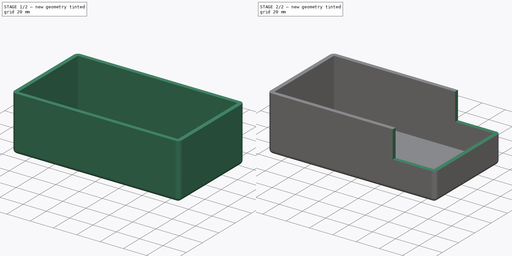
[diagram: build sequence overview — one tinted view per stage of 2, left to right]
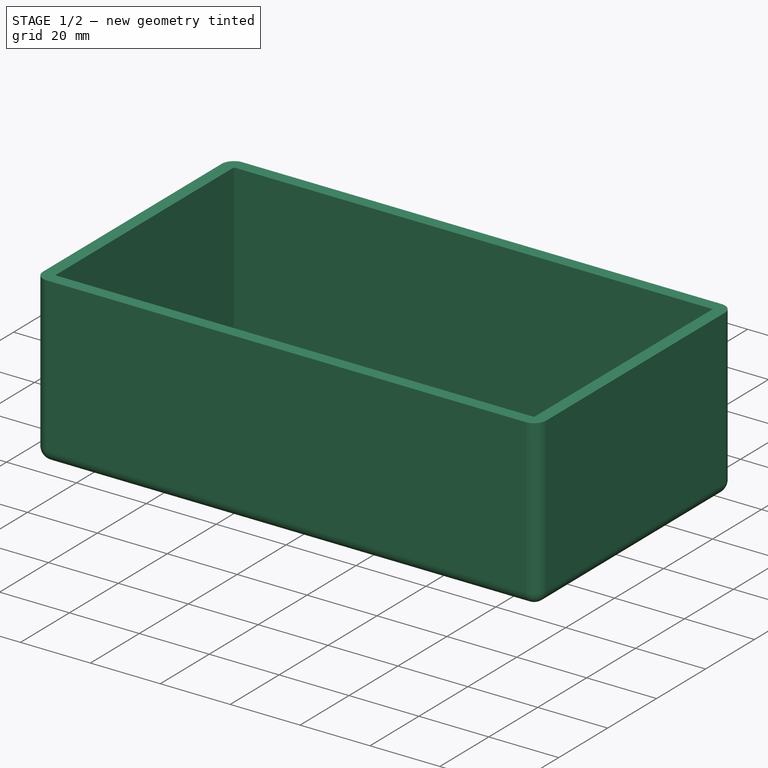
[diagram: stage 1 of 2 — iso view after this stage's code; geometry added in this stage tinted green]
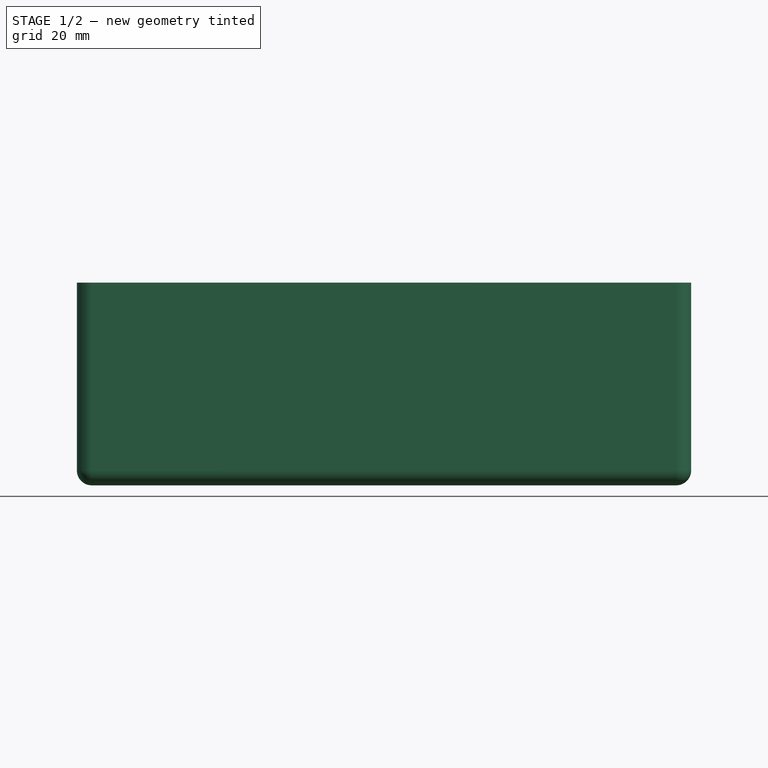
[diagram: stage 1 of 2 — front view after this stage's code; geometry added in this stage tinted green]
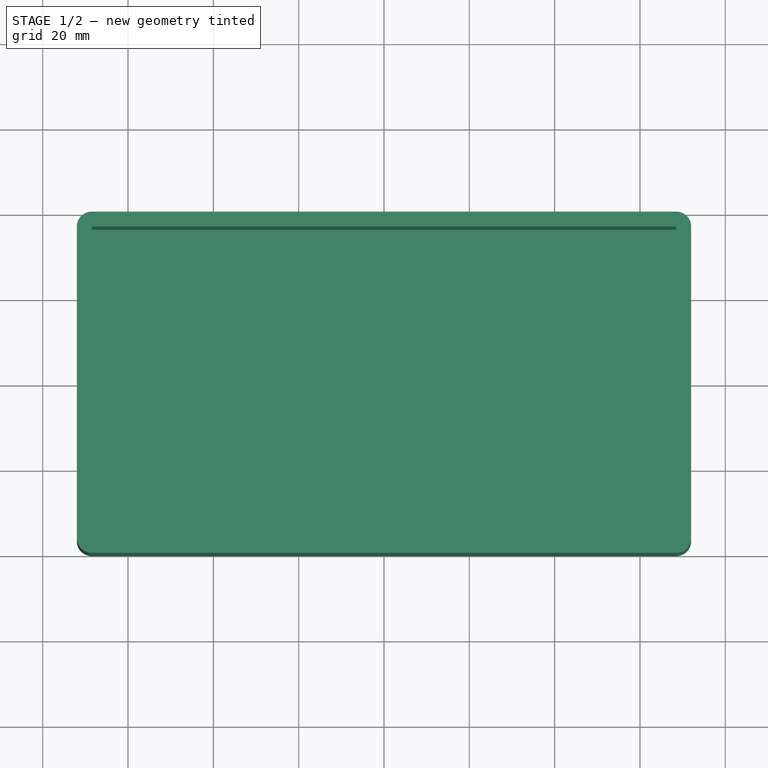
[diagram: stage 1 of 2 — top view after this stage's code; geometry added in this stage tinted green]
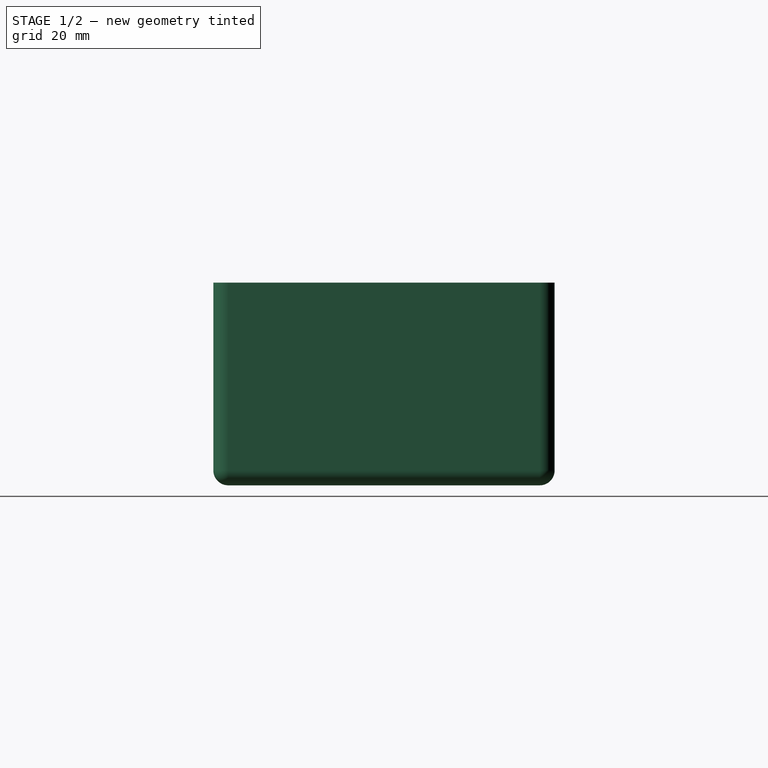
[diagram: stage 1 of 2 — right view after this stage's code; geometry added in this stage tinted green]
FCSTD DOCUMENT  (FreeCAD 0.18R4 (GitTag))
Label: CandleBurnerEnclosure
License: All rights reserved
LicenseURL: http://en.wikipedia.org/wiki/All_rights_reserved
objects: Sketcher::SketchObject×2, PartDesign::Pad×1, PartDesign::Thickness×1, PartDesign::Pocket×1, PartDesign::Body×1
note: 8 computed .brp shape members not serialized (recipe doc carries the construction recipe); baked Part::Feature solids carry a one-line shape summary decoded from their .brp

FEATURE [Sketcher::SketchObject] Sketch
  MapMode = 5
  Support = -> [XY_Plane]
  sketch-geometry (4):
    g0: LineSegment StartX=-68.5 StartY=36.5 StartZ=0 EndX=68.5 EndY=36.5 EndZ=0
    g1: LineSegment StartX=68.5 StartY=36.5 StartZ=0 EndX=68.5 EndY=-36.5 EndZ=0
    g2: LineSegment StartX=68.5 StartY=-36.5 StartZ=0 EndX=-68.5 EndY=-36.5 EndZ=0
    g3: LineSegment StartX=-68.5 StartY=-36.5 StartZ=0 EndX=-68.5 EndY=36.5 EndZ=0
  constraints (12):
    c: Coincident(g0,g1)
    c: Coincident(g1,g2)
    c: Coincident(g2,g3)
    c: Coincident(g3,g0)
    c: Horizontal(g0)
    c: Horizontal(g2)
    c: Vertical(g1)
    c: Vertical(g3)
    c: DistanceX(g0,g0) = 137
    c: DistanceX(g0,g-1) = 68.5
    c: DistanceY(g1,g1) = 73
    c: DistanceY(g-1,g0) = 36.5
FEATURE [PartDesign::Pad] Pad
  Length = 44
  Length2 = 100
  Profile = -> Sketch
  Type = 0
FEATURE [PartDesign::Thickness] Thickness
  Base = -> Pad [Face6]
  BaseFeature = -> Pad
  Join = 0
  Mode = 0
  Value = 3.5
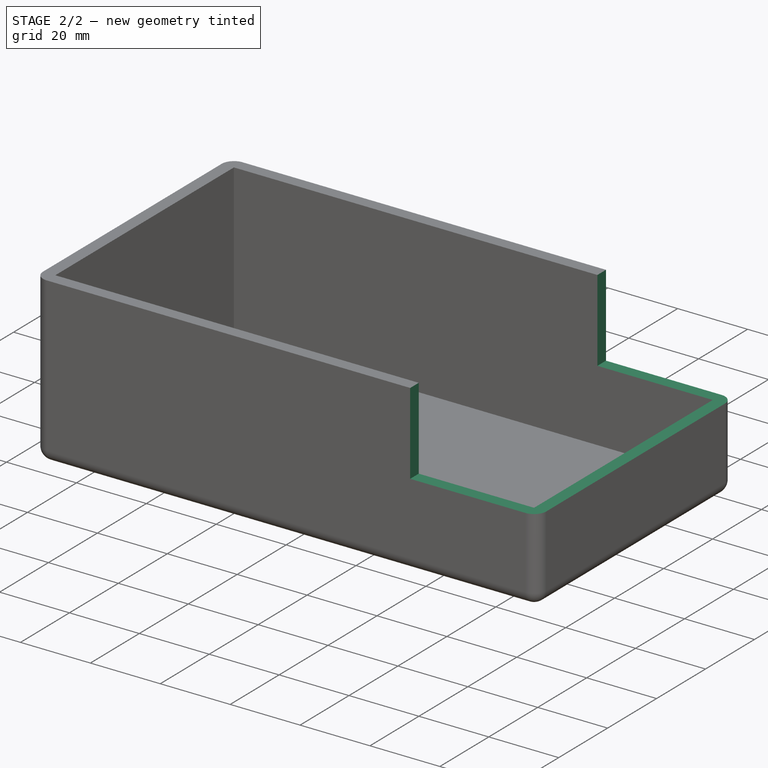
[diagram: stage 2 of 2 — iso view after this stage's code; geometry added in this stage tinted green]
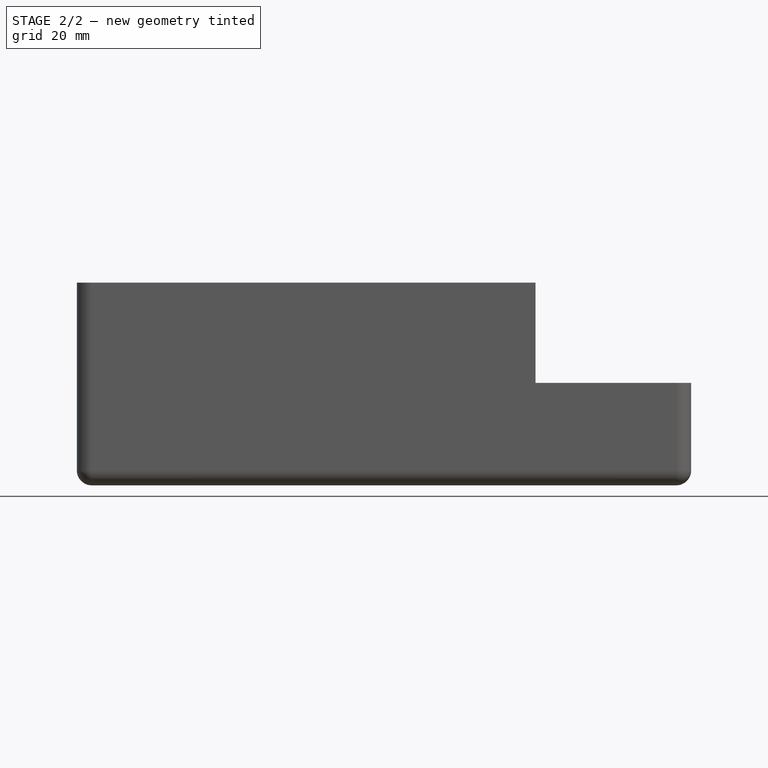
[diagram: stage 2 of 2 — front view after this stage's code; geometry added in this stage tinted green]
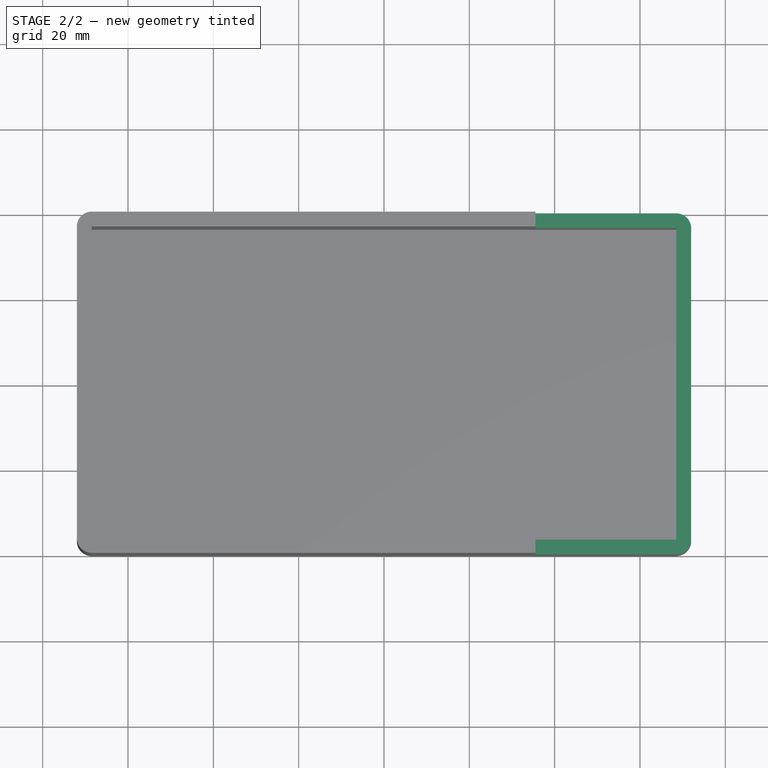
[diagram: stage 2 of 2 — top view after this stage's code; geometry added in this stage tinted green]
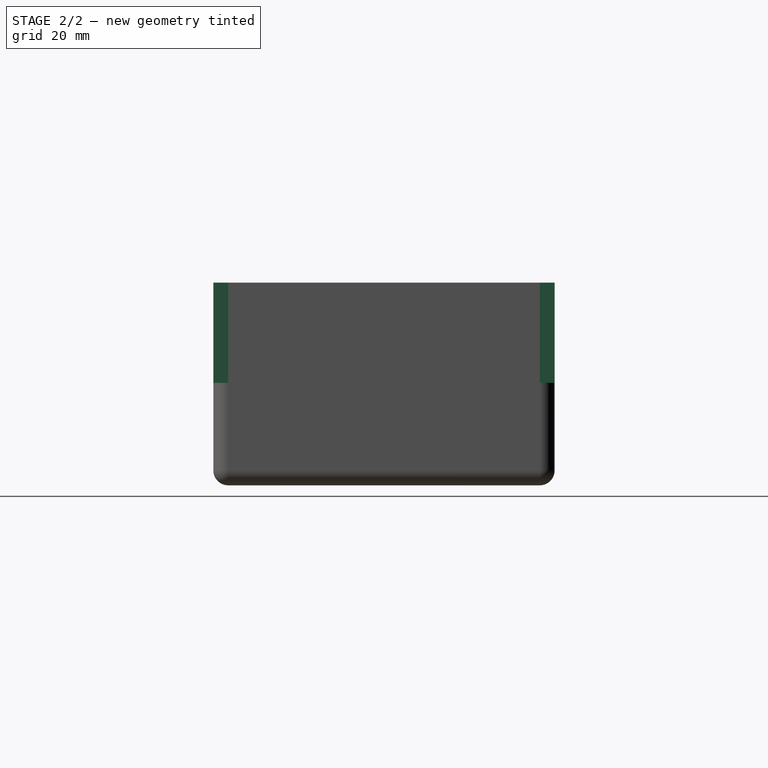
[diagram: stage 2 of 2 — right view after this stage's code; geometry added in this stage tinted green]
FEATURE [Sketcher::SketchObject] Sketch001
  ExternalGeometry = -> [Thickness]
  MapMode = 5
  Placement = pos=(0,-40,0) rot=(1,0,0;1.5708rad)
  Support = -> [Thickness]
  sketch-geometry (4):
    g0: LineSegment StartX=35.5 StartY=44 StartZ=0 EndX=72 EndY=44 EndZ=0
    g1: LineSegment StartX=72 StartY=44 StartZ=0 EndX=72 EndY=20.5 EndZ=0
    g2: LineSegment StartX=72 StartY=20.5 StartZ=0 EndX=35.5 EndY=20.5 EndZ=0
    g3: LineSegment StartX=35.5 StartY=20.5 StartZ=0 EndX=35.5 EndY=44 EndZ=0
  constraints (12):
    c: Coincident(g0,g1)
    c: Coincident(g1,g2)
    c: Coincident(g2,g3)
    c: Coincident(g3,g0)
    c: Horizontal(g0)
    c: Horizontal(g2)
    c: Vertical(g1)
    c: Vertical(g3)
    c: PointOnObject(g0,g-3)
    c: PointOnObject(g0,g-5)
    c: DistanceX(g-4,g0) = 104
    c: DistanceY(g-1,g2) = 20.5
FEATURE [PartDesign::Pocket] Pocket
  BaseFeature = -> Thickness
  Length = 89
  Length2 = 100
  Profile = -> Sketch001
  Type = 0
FEATURE [PartDesign::Body] Body
  Group = -> [Sketch,Pad,Thickness,Sketch001,Pocket]
  Origin = -> Origin
  Tip = -> Pocket
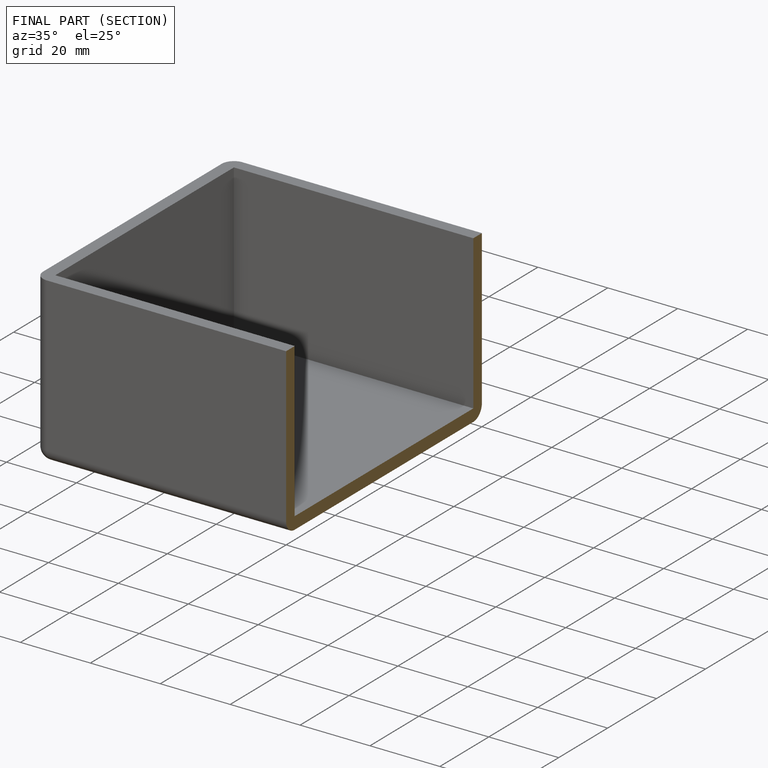
[diagram: finished part — half-section view (interior)]
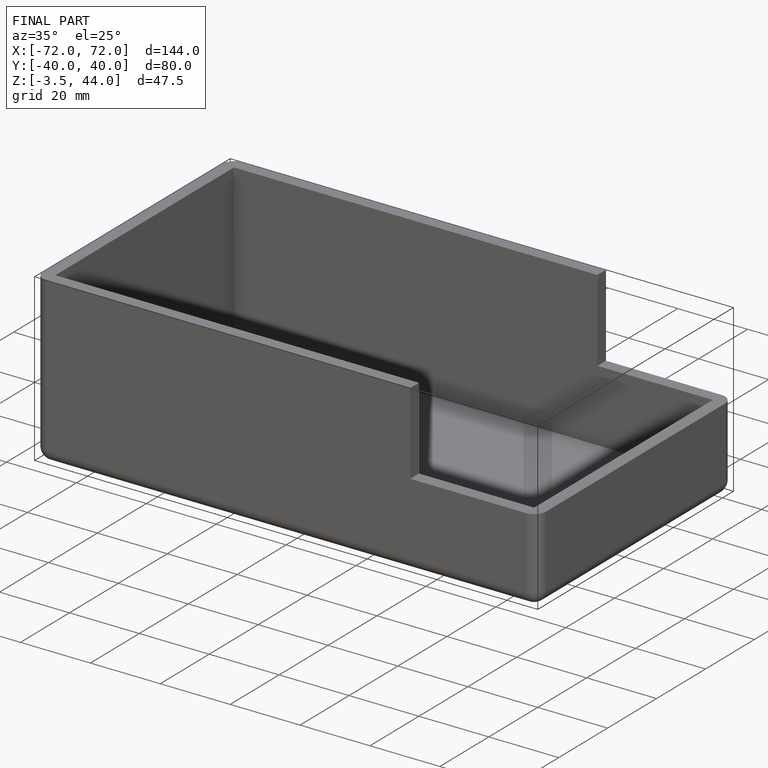
[diagram: finished part — iso view with bounding-box wireframe]
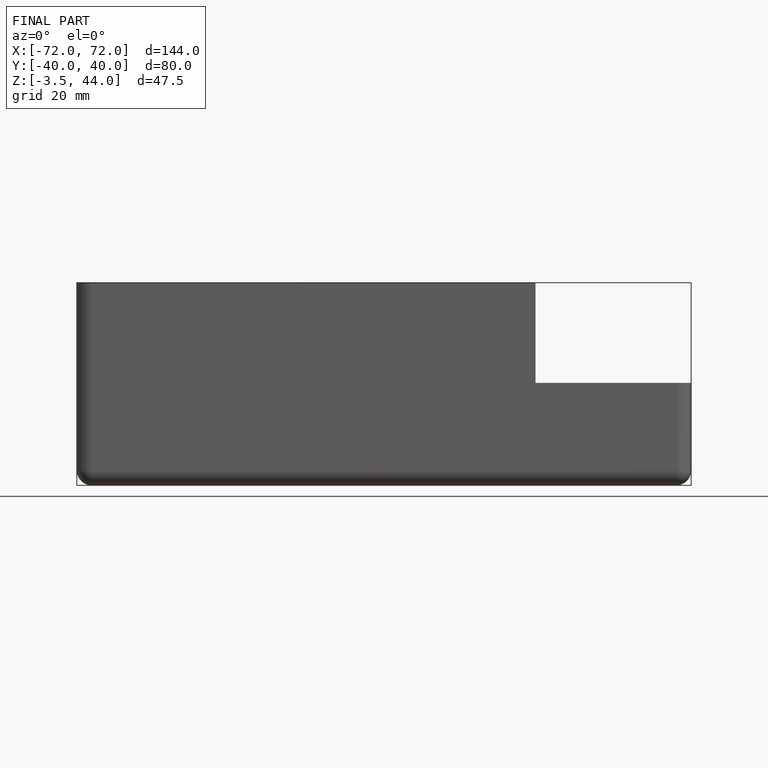
[diagram: finished part — front view with bounding-box wireframe]
